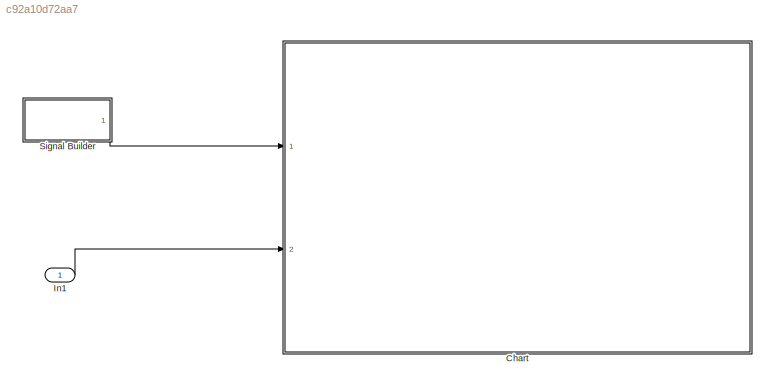
MODEL slx_c92a10d72aa7
KIND model
CONFIG AbsTol = auto
CONFIG EnableMultiTasking = off
CONFIG FixedStep = auto
CONFIG MaxStep = auto
CONFIG MinStep = auto
CONFIG RelTol = 1e-3
CONFIG SampleTimeConstraint = Unconstrained
CONFIG SolverName = VariableStepAuto
CONFIG StartTime = 0.0
CONFIG StopTime = 10.0
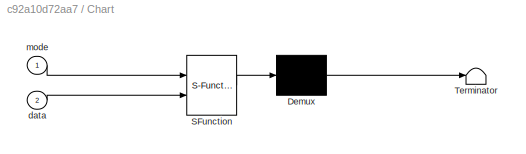
BLOCK [SubSystem] Chart
  ErrorFcn = Stateflow.Translate.translate
  PermitHierarchicalResolution = ExplicitOnly
  Ports = [2]
  RequestExecContextInheritance = off
  SFBlockType = Chart
  TreatAsAtomicUnit = on
BLOCK [Demux] Chart/ Demux 
  Outputs = 1
  Ports = [1, 1]
BLOCK [S-Function] Chart/ SFunction 
  EnableBusSupport = on
  FunctionName = sf_sfun
  PortCounts = [2 1]
  Ports = [2, 1]
  SFcnIsStateOwnerBlock = off
  SFunctionDeploymentMode = off
  Tag = Stateflow S-Function 3
BLOCK [Terminator] Chart/ Terminator 
BLOCK [Inport] Chart/data
  Port = 2
BLOCK [Inport] Chart/mode
BLOCK [Inport] In1
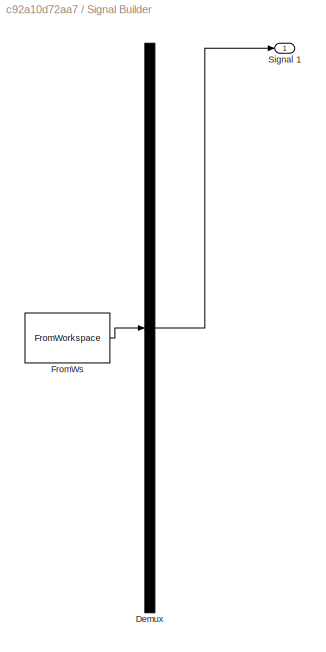
BLOCK [SubSystem] Signal Builder
  ClipboardFcn = sigbuilder_block('clipboard');
  CloseFcn = sigbuilder_block('close');
  ContinueFcn = sigbuilder_block('continue');
  CopyFcn = sigbuilder_block('copy');
  DeleteFcn = sigbuilder_block('delete');
  LoadFcn = sigbuilder_block('load');
  MaskHideContents = on
  ModelCloseFcn = sigbuilder_block('modelClose');
  NameChangeFcn = sigbuilder_block('namechange');
  OpenFcn = sigbuilder_block('open',[437.6 199.2 550.4 400 ]);
  PauseFcn = sigbuilder_block('pause');
  Ports = [0, 1]
  PreSaveFcn = sigbuilder_block('preSave');
  RequestExecContextInheritance = off
  StartFcn = sigbuilder_block('start');
  StopFcn = sigbuilder_block('stop');
  Tag = STV Subsys
BLOCK [Demux] Signal Builder/Demux
  DisplayOption = none
  Outputs = 1
  Ports = [1, 1]
  Tag = STV Demux
BLOCK [FromWorkspace] Signal Builder/FromWs
  Tag = STV FromWs
  VariableName = tuvar
BLOCK [Outport] Signal Builder/Signal 1
  Tag = STV Outport
LINE In1:1 -> Chart:2
LINE Signal Builder:1 -> Chart:1
CHART Chart states=4 transitions=9
  STATE_LABEL "fffff\nen:\nsfdbg('fff en')\ndu:\nsfdbg('fff du')\nex:\nsfdbg('fff ex')\n"
  STATE_LABEL "SETPOINT_TYPE_IDLE\nen:\nsfdbg('idle en')\ndu:\nsfdbg('idle du')\nex:\nsfdbg('idle ex')\n"
  STATE_LABEL "SETPOINT_TYPE_TAKEOFF\nen:\nsfdbg('take en')\ndu:\nsfdbg('take du')\nssss()\nex:\nsfdbg('take,ex')"
  STATE_LABEL "SETPOINT_TYPE_TAKEOFF1\nen:\nsfdbg('take1 en')\ndu:\nsfdbg('take1 du')\nex:\nsfdbg('take,ex')"
  STATE_LABEL "[hasChanged(mode)]{sfdbg('to inner')}"
  STATE_LABEL '[mode ==1]'
  STATE_LABEL "[mode ==2||after(1,sec)]{sfdbg('to take')}"
  STATE_LABEL "[mode == 1]{sfdbg('to idle')}"
  STATE_LABEL '[mode==2]'
  STATE_LABEL "SETPOINT_TYPE_IDLE\nen:\nsfdbg('idle en')\ndu:\nsfdbg('idle du')\nex:\nsfdbg('idle ex')\n"
  STATE_LABEL "SETPOINT_TYPE_TAKEOFF\nen:\nsfdbg('take en')\ndu:\nsfdbg('take du')\nssss()\nex:\nsfdbg('take,ex')"
  STATE_LABEL "SETPOINT_TYPE_TAKEOFF1\nen:\nsfdbg('take1 en')\ndu:\nsfdbg('take1 du')\nex:\nsfdbg('take,ex')"
CHART  states=0 transitions=0
